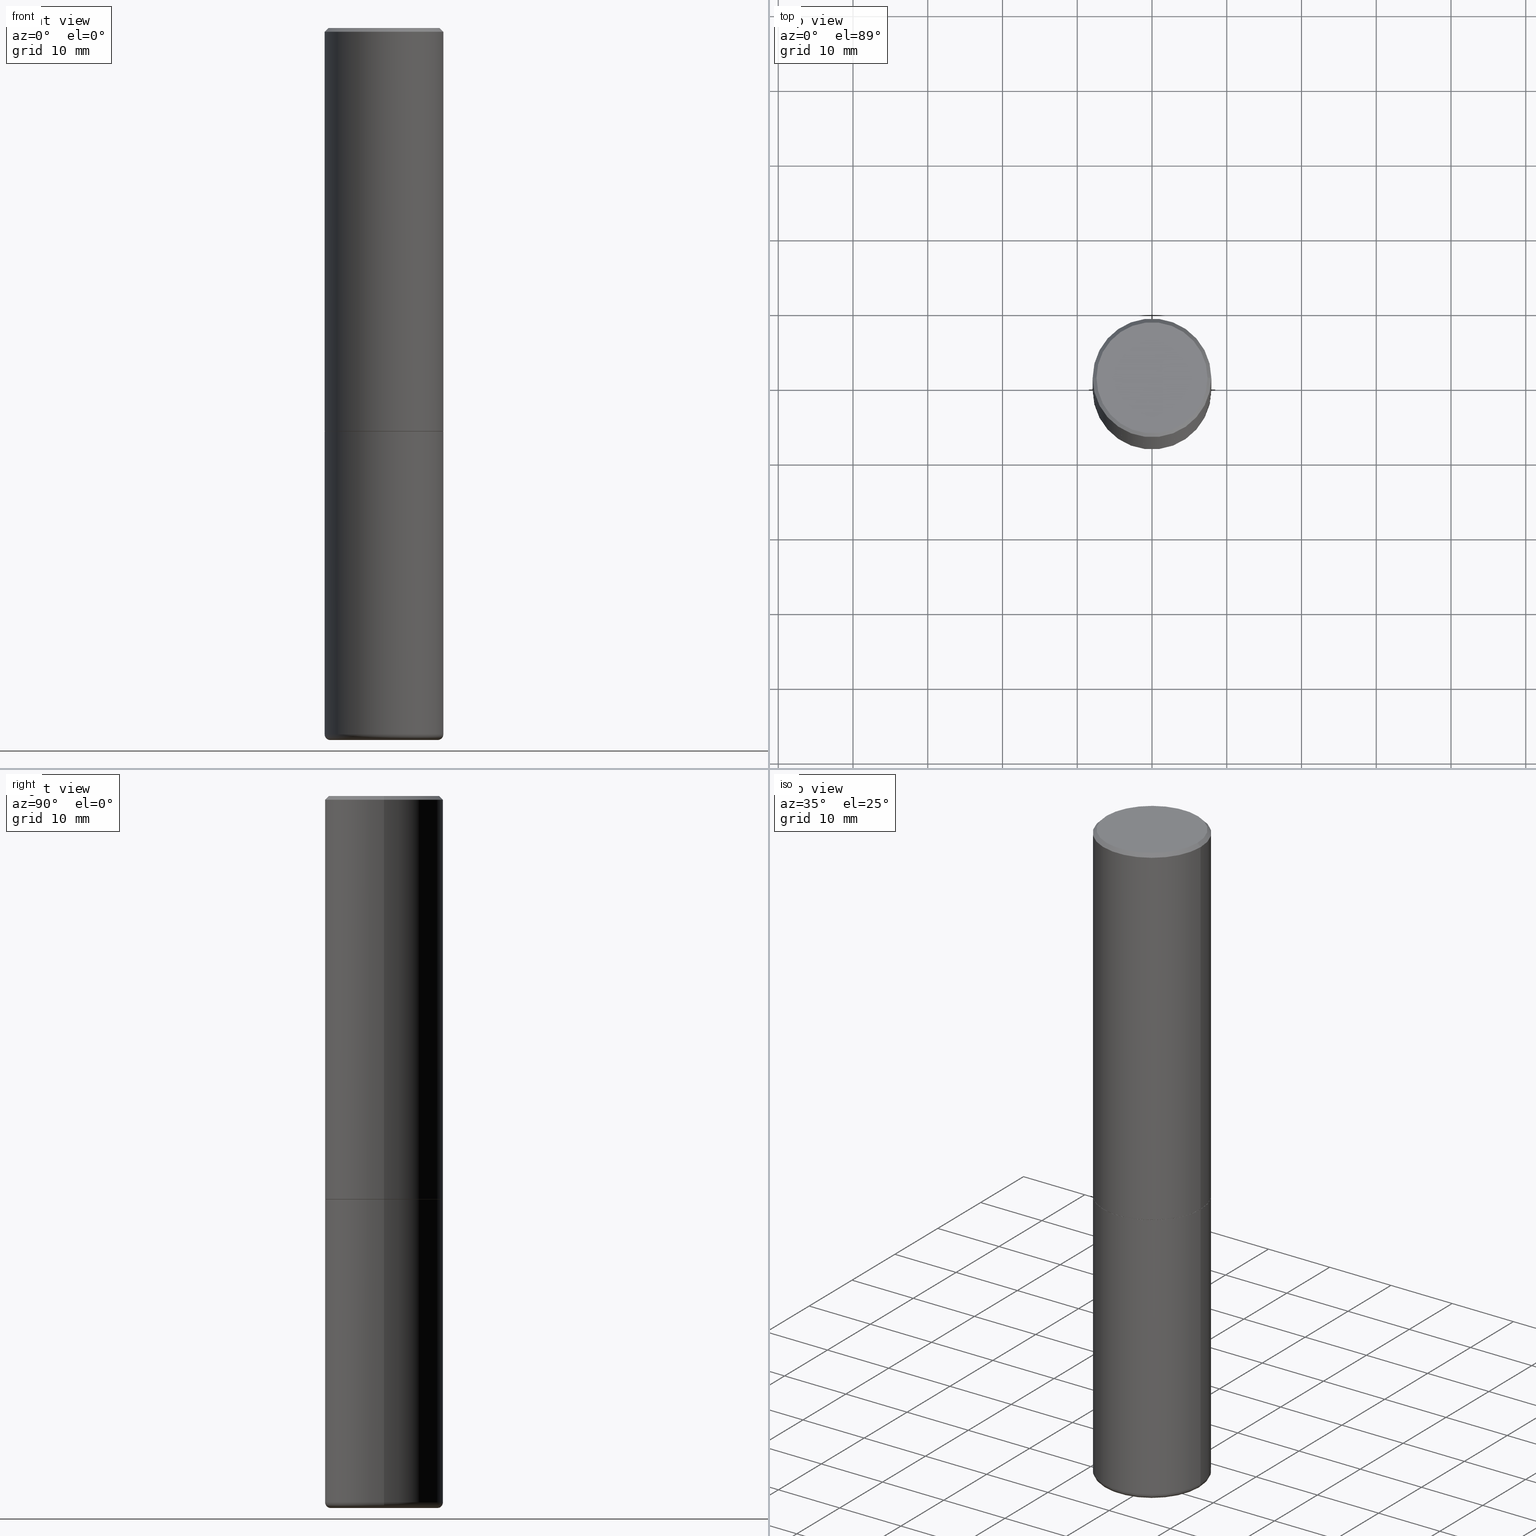
[diagram: canonical four-view strip — front | top / right | iso, engineering-drawing reading convention]
A machine part, canonical four-view strip (front | top / right | iso — engineering-drawing reading convention). The complete STEP part file that produces these views, byte-faithful:
ISO-10303-21;
HEADER;
FILE_DESCRIPTION (( 'STEP AP203' ),
    '1' );
FILE_NAME ('34302.STEP',
    '2022-11-02T20:14:49',
    ( '' ),
    ( '' ),
    'SwSTEP 2.0',
    'SolidWorks 2022',
    '' );
FILE_SCHEMA (( 'CONFIG_CONTROL_DESIGN' ));
ENDSEC;

DATA;
#1 = EDGE_CURVE ( 'NONE', #412, #258, #116, .T. ) ;
#2 = AXIS2_PLACEMENT_3D ( 'NONE', #359, #19, #168 ) ;
#3 = EDGE_LOOP ( 'NONE', ( #232, #436, #234, #221 ) ) ;
#4 = VERTEX_POINT ( 'NONE', #352 ) ;
#5 = LINE ( 'NONE', #155, #463 ) ;
#6 = ADVANCED_FACE ( 'NONE', ( #403 ), #225, .F. ) ;
#7 = AXIS2_PLACEMENT_3D ( 'NONE', #14, #162, #166 ) ;
#8 = CONICAL_SURFACE ( 'NONE', #306, 0.2822382039350491145, 1.562069680534954541 ) ;
#9 = DIRECTION ( 'NONE',  ( -2.445468806185136597E-29, 3.491481338843145583E-15, 1.000000000000000000 ) ) ;
#10 = CARTESIAN_POINT ( 'NONE',  ( 9.097146752487473464E-29, -1.298831456884382869E-14, -3.720001142308075437 ) ) ;
#11 = CC_DESIGN_PERSON_AND_ORGANIZATION_ASSIGNMENT ( #45, #74, ( #105 ) ) ;
#12 = EDGE_CURVE ( 'NONE', #262, #72, #315, .T. ) ;
#13 = AXIS2_PLACEMENT_3D ( 'NONE', #10, #135, #432 ) ;
#14 = CARTESIAN_POINT ( 'NONE',  ( 4.890937612370309067E-31, -6.982962677686343378E-17, -0.02000000000000014960 ) ) ;
#15 = CARTESIAN_POINT ( 'NONE',  ( 0.000000000000000000, 0.000000000000000000, 0.000000000000000000 ) ) ;
#16 = DIRECTION ( 'NONE',  ( 1.000000000000000000, -6.982962677686267499E-15, 4.876176775795935793E-29 ) ) ;
#17 = LINE ( 'NONE', #440, #37 ) ;
#18 = APPROVAL ( #24, 'UNSPECIFIED' ) ;
#19 = DIRECTION ( 'NONE',  ( 2.445468806185136597E-29, -3.491481338843145583E-15, -1.000000000000000000 ) ) ;
#20 = CARTESIAN_POINT ( 'NONE',  ( 4.890937612370309067E-31, -6.982962677686343378E-17, -0.02000000000000014960 ) ) ;
#21 = APPLICATION_PROTOCOL_DEFINITION ( 'international standard', 'config_control_design', 1994, #175 ) ;
#22 = ORIENTED_EDGE ( 'NONE', *, *, #112, .T. ) ;
#23 = AXIS2_PLACEMENT_3D ( 'NONE', #56, #201, #163 ) ;
#24 = APPROVAL_STATUS ( 'not_yet_approved' ) ;
#25 = CARTESIAN_POINT ( 'NONE',  ( 0.2489069539350490801, -1.479966508670854674E-14, -3.749709122587949750 ) ) ;
#26 = DIRECTION ( 'NONE',  ( -2.445468806185136597E-29, 3.491481338843145583E-15, 1.000000000000000000 ) ) ;
#27 = CARTESIAN_POINT ( 'NONE',  ( 4.890937612370309067E-31, -6.982962677686343378E-17, -0.02000000000000014960 ) ) ;
#28 = ORIENTED_EDGE ( 'NONE', *, *, #92, .F. ) ;
#29 = EDGE_LOOP ( 'NONE', ( #106, #41 ) ) ;
#30 = EDGE_CURVE ( 'NONE', #190, #212, #323, .T. ) ;
#31 = COORDINATED_UNIVERSAL_TIME_OFFSET ( 5, 0, .BEHIND. ) ;
#32 = DIRECTION ( 'NONE',  ( -0.7071067811864992780, 7.493145998870180611E-15, 0.7071067811865957564 ) ) ;
#33 = FACE_OUTER_BOUND ( 'NONE', #179, .T. ) ;
#34 = ORIENTED_EDGE ( 'NONE', *, *, #390, .F. ) ;
#35 = DATE_AND_TIME ( #307, #114 ) ;
#36 = FACE_OUTER_BOUND ( 'NONE', #78, .T. ) ;
#37 = VECTOR ( 'NONE', #167, 39.37007874015748143 ) ;
#38 = CARTESIAN_POINT ( 'NONE',  ( 0.3124999999999992784, -1.517049040562078230E-14, -3.720001142308075437 ) ) ;
#39 = DIRECTION ( 'NONE',  ( 0.000000000000000000, 0.000000000000000000, 1.000000000000000000 ) ) ;
#40 = EDGE_CURVE ( 'NONE', #262, #258, #271, .T. ) ;
#41 = ORIENTED_EDGE ( 'NONE', *, *, #462, .T. ) ;
#42 = AXIS2_PLACEMENT_3D ( 'NONE', #52, #431, #240 ) ;
#43 = ORIENTED_EDGE ( 'NONE', *, *, #418, .F. ) ;
#44 = CARTESIAN_POINT ( 'NONE',  ( 0.2924999999999991496, -2.110215457714314803E-15, 4.268512490114932791E-18 ) ) ;
#45 = PERSON_AND_ORGANIZATION ( #480, #335 ) ;
#46 = DIRECTION ( 'NONE',  ( 1.000000000000000000, -6.982962677686265133E-15, 0.000000000000000000 ) ) ;
#47 = ORIENTED_EDGE ( 'NONE', *, *, #383, .T. ) ;
#48 = AXIS2_PLACEMENT_3D ( 'NONE', #198, #9, #385 ) ;
#49 = DIRECTION ( 'NONE',  ( -1.000000000000000000, 6.982962677686264344E-15, 0.000000000000000000 ) ) ;
#50 = EDGE_LOOP ( 'NONE', ( #129, #86, #205, #388 ) ) ;
#51 = CIRCLE ( 'NONE', #285, 0.02999999999999944031 ) ;
#52 = CARTESIAN_POINT ( 'NONE',  ( 9.097146752487473464E-29, -1.298831456884382869E-14, -3.720001142308075437 ) ) ;
#53 = CARTESIAN_POINT ( 'NONE',  ( -0.2822382039350491145, -1.112219617636614208E-14, -3.749999999999999556 ) ) ;
#54 = CARTESIAN_POINT ( 'NONE',  ( 0.3124999999999993339, -2.213735251080462573E-15, -0.02000000000000014960 ) ) ;
#55 = AXIS2_PLACEMENT_3D ( 'NONE', #71, #39, #447 ) ;
#56 = CARTESIAN_POINT ( 'NONE',  ( 5.194175744337230786E-29, -7.415906363702842194E-15, -2.124000000000000110 ) ) ;
#57 = CONICAL_SURFACE ( 'NONE', #174, 0.3114999999999996660, 0.7853981633973801113 ) ;
#58 = ADVANCED_FACE ( 'NONE', ( #386 ), #84, .T. ) ;
#59 = CARTESIAN_POINT ( 'NONE',  ( -0.3114999999999996660, -5.200758768800752304E-15, -2.125000000000000000 ) ) ;
#60 = DIRECTION ( 'NONE',  ( 1.000000000000000000, -6.982962677686267499E-15, 4.876176775795935793E-29 ) ) ;
#61 = EDGE_LOOP ( 'NONE', ( #229, #122, #149, #131 ) ) ;
#62 = PERSON_AND_ORGANIZATION_ROLE ( 'design_owner' ) ;
#63 = FACE_OUTER_BOUND ( 'NONE', #194, .T. ) ;
#64 = DIRECTION ( 'NONE',  ( 1.000000000000000000, -6.982962677686264344E-15, 0.000000000000000000 ) ) ;
#65 = DIRECTION ( 'NONE',  ( 2.438088387897960049E-29, -3.491481338843145188E-15, -1.000000000000000000 ) ) ;
#66 = CC_DESIGN_SECURITY_CLASSIFICATION ( #151, ( #235 ) ) ;
#67 = FACE_OUTER_BOUND ( 'NONE', #481, .T. ) ;
#68 = CIRCLE ( 'NONE', #382, 0.2924999999999991496 ) ;
#69 = CYLINDRICAL_SURFACE ( 'NONE', #161, 0.3124999999999994449 ) ;
#70 = CARTESIAN_POINT ( 'NONE',  ( 9.097146752487473464E-29, -1.298831456884382869E-14, -3.720001142308075437 ) ) ;
#71 = CARTESIAN_POINT ( 'NONE',  ( 0.000000000000000000, 0.000000000000000000, 0.000000000000000000 ) ) ;
#72 = VERTEX_POINT ( 'NONE', #38 ) ;
#73 = ORIENTED_EDGE ( 'NONE', *, *, #30, .F. ) ;
#74 = PERSON_AND_ORGANIZATION_ROLE ( 'creator' ) ;
#75 = EDGE_CURVE ( 'NONE', #381, #227, #158, .T. ) ;
#76 = CARTESIAN_POINT ( 'NONE',  ( -0.3124999999999996114, -7.983410157692447018E-15, -2.125000000000000000 ) ) ;
#77 = DIRECTION ( 'NONE',  ( 2.438088387897960049E-29, -3.491481338843145188E-15, -1.000000000000000000 ) ) ;
#78 = EDGE_LOOP ( 'NONE', ( #47, #460, #73, #312 ) ) ;
#79 = ORIENTED_EDGE ( 'NONE', *, *, #89, .T. ) ;
#80 = SECURITY_CLASSIFICATION_LEVEL ( 'unclassified' ) ;
#81 = CIRCLE ( 'NONE', #478, 0.3114999999999996660 ) ;
#82 = APPROVAL_DATE_TIME ( #191, #464 ) ;
#83 = COORDINATED_UNIVERSAL_TIME_OFFSET ( 5, 0, .BEHIND. ) ;
#84 = CONICAL_SURFACE ( 'NONE', #48, 0.3114999999999996660, 0.7853981633973801113 ) ;
#85 = AXIS2_PLACEMENT_3D ( 'NONE', #15, #318, #16 ) ;
#86 = ORIENTED_EDGE ( 'NONE', *, *, #292, .T. ) ;
#87 = CARTESIAN_POINT ( 'NONE',  ( -0.3124999999999994449, 2.220446049250309137E-15, -1.537167215704655429E-29 ) ) ;
#88 = DATE_AND_TIME ( #233, #253 ) ;
#89 = EDGE_CURVE ( 'NONE', #367, #190, #187, .T. ) ;
#90 = DIRECTION ( 'NONE',  ( 1.000000000000000000, -6.982962677686269077E-15, 0.000000000000000000 ) ) ;
#91 = AXIS2_PLACEMENT_3D ( 'NONE', #319, #283, #289 ) ;
#92 = EDGE_CURVE ( 'NONE', #465, #124, #353, .T. ) ;
#93 = CARTESIAN_POINT ( 'NONE',  ( -0.2489069539350490801, -1.135393145806070933E-14, -3.749709122587949750 ) ) ;
#94 = DIRECTION ( 'NONE',  ( 1.000000000000000000, -6.982962677686268288E-15, 0.000000000000000000 ) ) ;
#95 = DIRECTION ( 'NONE',  ( 1.000000000000000000, -6.982962677686264344E-15, 0.000000000000000000 ) ) ;
#96 = EDGE_CURVE ( 'NONE', #4, #110, #430, .T. ) ;
#97 = FACE_OUTER_BOUND ( 'NONE', #476, .T. ) ;
#98 = EDGE_LOOP ( 'NONE', ( #290, #260, #196, #449 ) ) ;
#99 = VECTOR ( 'NONE', #316, 39.37007874015748854 ) ;
#100 = TOROIDAL_SURFACE ( 'NONE', #409, 0.2825000000000001399, 0.02999999999999945072 ) ;
#101 = LINE ( 'NONE', #302, #145 ) ;
#102 = PERSON_AND_ORGANIZATION ( #480, #335 ) ;
#103 = DIRECTION ( 'NONE',  ( -1.000000000000000000, 6.982962677686266711E-15, 0.000000000000000000 ) ) ;
#104 = CARTESIAN_POINT ( 'NONE',  ( 0.000000000000000000, 0.000000000000000000, 0.000000000000000000 ) ) ;
#105 = PRODUCT_DEFINITION ( 'UNKNOWN', '', #235, #343 ) ;
#106 = ORIENTED_EDGE ( 'NONE', *, *, #195, .T. ) ;
#107 =( GEOMETRIC_REPRESENTATION_CONTEXT ( 3 ) GLOBAL_UNCERTAINTY_ASSIGNED_CONTEXT ( ( #416 ) ) GLOBAL_UNIT_ASSIGNED_CONTEXT ( ( #401, #214, #119 ) ) REPRESENTATION_CONTEXT ( 'NONE', 'WORKASPACE' ) );
#108 = AXIS2_PLACEMENT_3D ( 'NONE', #27, #218, #181 ) ;
#109 = DIRECTION ( 'NONE',  ( 7.105427357601001859E-15, 1.000000000000000000, -3.491481338843145583E-15 ) ) ;
#110 = VERTEX_POINT ( 'NONE', #93 ) ;
#111 = DIRECTION ( 'NONE',  ( -2.445468806185136597E-29, 3.491481338843145583E-15, 1.000000000000000000 ) ) ;
#112 = EDGE_CURVE ( 'NONE', #212, #190, #373, .T. ) ;
#113 = DIRECTION ( 'NONE',  ( -2.445468806185136597E-29, 3.491481338843145583E-15, 1.000000000000000000 ) ) ;
#114 = LOCAL_TIME ( 16, 14, 49.00000000000000000, #83 ) ;
#115 = CALENDAR_DATE ( 2022, 2, 11 ) ;
#116 = CIRCLE ( 'NONE', #468, 0.3124999999999996114 ) ;
#117 = VERTEX_POINT ( 'NONE', #351 ) ;
#118 = COORDINATED_UNIVERSAL_TIME_OFFSET ( 5, 0, .BEHIND. ) ;
#119 =( NAMED_UNIT ( * ) SI_UNIT ( $, .STERADIAN. ) SOLID_ANGLE_UNIT ( ) );
#120 = VECTOR ( 'NONE', #375, 39.37007874015748143 ) ;
#121 = CIRCLE ( 'NONE', #23, 0.3124999999999996114 ) ;
#122 = ORIENTED_EDGE ( 'NONE', *, *, #12, .T. ) ;
#123 = PRODUCT_RELATED_PRODUCT_CATEGORY ( 'detail', '', ( #153 ) ) ;
#124 = VERTEX_POINT ( 'NONE', #356 ) ;
#125 = DIRECTION ( 'NONE',  ( 1.000000000000000000, -6.982962677686265922E-15, 4.883557194083112340E-29 ) ) ;
#126 = DIRECTION ( 'NONE',  ( 0.7071067811865476838, -7.319954787623257623E-15, -0.7071067811865473507 ) ) ;
#127 = ORIENTED_EDGE ( 'NONE', *, *, #197, .T. ) ;
#128 = EDGE_CURVE ( 'NONE', #406, #117, #81, .T. ) ;
#129 = ORIENTED_EDGE ( 'NONE', *, *, #264, .F. ) ;
#130 = CC_DESIGN_APPROVAL ( #464, ( #235 ) ) ;
#131 = ORIENTED_EDGE ( 'NONE', *, *, #197, .F. ) ;
#132 = AXIS2_PLACEMENT_3D ( 'NONE', #252, #404, #95 ) ;
#133 = DIRECTION ( 'NONE',  ( 2.445468806185136597E-29, -3.491481338843145583E-15, -1.000000000000000000 ) ) ;
#134 = CARTESIAN_POINT ( 'NONE',  ( 9.170508023194261117E-29, -1.309305502066179584E-14, -3.749999999999999556 ) ) ;
#135 = DIRECTION ( 'NONE',  ( -2.445468806185136597E-29, 3.491481338843145583E-15, 1.000000000000000000 ) ) ;
#136 = CIRCLE ( 'NONE', #269, 0.02999999999999944031 ) ;
#137 = ORIENTED_EDGE ( 'NONE', *, *, #380, .F. ) ;
#138 = CIRCLE ( 'NONE', #354, 0.2822382039350491145 ) ;
#139 = DIRECTION ( 'NONE',  ( 1.000000000000000000, -6.982962677686265922E-15, 4.876176775795935793E-29 ) ) ;
#140 = ORIENTED_EDGE ( 'NONE', *, *, #177, .T. ) ;
#141 = CARTESIAN_POINT ( 'NONE',  ( 2.182175836777007256E-15, 0.3124999999999921729, -2.125000000000001332 ) ) ;
#142 = LINE ( 'NONE', #378, #469 ) ;
#143 = CARTESIAN_POINT ( 'NONE',  ( -0.3124999999999993339, 2.112346210000090316E-15, -0.02000000000000014960 ) ) ;
#144 = CARTESIAN_POINT ( 'NONE',  ( 0.3124999999999994449, -2.182175836776954797E-15, 1.523805242436227273E-29 ) ) ;
#145 = VECTOR ( 'NONE', #32, 39.37007874015748143 ) ;
#146 = FACE_OUTER_BOUND ( 'NONE', #384, .T. ) ;
#147 = SHAPE_DEFINITION_REPRESENTATION ( #376, #207 ) ;
#148 = DIRECTION ( 'NONE',  ( -2.445468806185136597E-29, 3.491481338843145583E-15, 1.000000000000000000 ) ) ;
#149 = ORIENTED_EDGE ( 'NONE', *, *, #154, .T. ) ;
#150 = LOCAL_TIME ( 16, 14, 49.00000000000000000, #31 ) ;
#151 = SECURITY_CLASSIFICATION ( '', '', #80 ) ;
#152 = ORIENTED_EDGE ( 'NONE', *, *, #184, .F. ) ;
#153 = PRODUCT ( '34302', '34302', '', ( #291 ) ) ;
#154 = EDGE_CURVE ( 'NONE', #72, #412, #444, .T. ) ;
#155 = CARTESIAN_POINT ( 'NONE',  ( -0.3124999999999994449, 2.220446049250309137E-15, -1.537167215704655429E-29 ) ) ;
#156 = AXIS2_PLACEMENT_3D ( 'NONE', #357, #405, #217 ) ;
#157 = ADVANCED_FACE ( 'NONE', ( #33 ), #391, .F. ) ;
#158 = LINE ( 'NONE', #274, #296 ) ;
#159 = APPROVAL_PERSON_ORGANIZATION ( #188, #257, #454 ) ;
#160 = ADVANCED_FACE ( 'NONE', ( #287 ), #482, .F. ) ;
#161 = AXIS2_PLACEMENT_3D ( 'NONE', #215, #331, #410 ) ;
#162 = DIRECTION ( 'NONE',  ( -2.445468806185136597E-29, 3.491481338843145583E-15, 1.000000000000000000 ) ) ;
#163 = DIRECTION ( 'NONE',  ( 1.000000000000000000, -6.982962677686269077E-15, 0.000000000000000000 ) ) ;
#164 = ORIENTED_EDGE ( 'NONE', *, *, #112, .F. ) ;
#165 = CARTESIAN_POINT ( 'NONE',  ( 9.097146752487473464E-29, -1.298831456884382869E-14, -3.720001142308075437 ) ) ;
#166 = DIRECTION ( 'NONE',  ( 1.000000000000000000, -6.982962677686266711E-15, 0.000000000000000000 ) ) ;
#167 = DIRECTION ( 'NONE',  ( 0.7071067811864992780, -2.468850131081751401E-15, 0.7071067811865957564 ) ) ;
#168 = DIRECTION ( 'NONE',  ( -1.000000000000000000, 6.982962677686265133E-15, 0.000000000000000000 ) ) ;
#169 = EDGE_CURVE ( 'NONE', #381, #110, #256, .T. ) ;
#170 = CARTESIAN_POINT ( 'NONE',  ( 0.000000000000000000, 0.000000000000000000, 0.000000000000000000 ) ) ;
#171 = CARTESIAN_POINT ( 'NONE',  ( 5.196621213143415268E-29, -7.419397845041685201E-15, -2.125000000000000000 ) ) ;
#172 = APPROVAL_ROLE ( '' ) ;
#173 = MANIFOLD_SOLID_BREP ( 'Body-Move/Copy2[2]', #230 ) ;
#174 = AXIS2_PLACEMENT_3D ( 'NONE', #414, #455, #484 ) ;
#175 = APPLICATION_CONTEXT ( 'configuration controlled 3d designs of mechanical parts and assemblies' ) ;
#176 = AXIS2_PLACEMENT_3D ( 'NONE', #141, #65, #442 ) ;
#177 = EDGE_CURVE ( 'NONE', #117, #124, #17, .T. ) ;
#178 = CARTESIAN_POINT ( 'NONE',  ( 0.3124999999999994449, -2.182175836776954797E-15, 1.523805242436227273E-29 ) ) ;
#179 = EDGE_LOOP ( 'NONE', ( #342, #441, #389 ) ) ;
#180 = DIRECTION ( 'NONE',  ( 0.9993908270190957621, -6.978169709227544643E-15, -0.03489949670250174635 ) ) ;
#181 = DIRECTION ( 'NONE',  ( -1.000000000000000000, 6.982962677686266711E-15, 0.000000000000000000 ) ) ;
#182 = DIMENSIONAL_EXPONENTS ( 1.000000000000000000, 0.000000000000000000, 0.000000000000000000, 0.000000000000000000, 0.000000000000000000, 0.000000000000000000, 0.000000000000000000 ) ;
#183 = EDGE_LOOP ( 'NONE', ( #329, #192, #308, #369 ) ) ;
#184 = EDGE_CURVE ( 'NONE', #72, #262, #267, .T. ) ;
#185 = ORIENTED_EDGE ( 'NONE', *, *, #488, .F. ) ;
#186 = CONICAL_SURFACE ( 'NONE', #243, 0.2822382039350491145, 1.562069680534954541 ) ;
#187 = LINE ( 'NONE', #466, #321 ) ;
#188 = PERSON_AND_ORGANIZATION ( #480, #335 ) ;
#189 = DIRECTION ( 'NONE',  ( -0.7071067811865476838, 2.468850131082258638E-15, -0.7071067811865473507 ) ) ;
#190 = VERTEX_POINT ( 'NONE', #54 ) ;
#191 = DATE_AND_TIME ( #115, #216 ) ;
#192 = ORIENTED_EDGE ( 'NONE', *, *, #206, .T. ) ;
#193 = CIRCLE ( 'NONE', #156, 0.2489069539350490801 ) ;
#194 = EDGE_LOOP ( 'NONE', ( #419, #248, #152, #185 ) ) ;
#195 = EDGE_CURVE ( 'NONE', #298, #367, #68, .T. ) ;
#196 = ORIENTED_EDGE ( 'NONE', *, *, #1, .F. ) ;
#197 = EDGE_CURVE ( 'NONE', #258, #412, #362, .T. ) ;
#198 = CARTESIAN_POINT ( 'NONE',  ( 5.196621213143415268E-29, -7.419397845041685201E-15, -2.125000000000000000 ) ) ;
#199 = AXIS2_PLACEMENT_3D ( 'NONE', #70, #366, #332 ) ;
#200 = ORIENTED_EDGE ( 'NONE', *, *, #96, .T. ) ;
#201 = DIRECTION ( 'NONE',  ( -2.445468806185136597E-29, 3.491481338843145583E-15, 1.000000000000000000 ) ) ;
#202 = CARTESIAN_POINT ( 'NONE',  ( 5.196621213143415268E-29, -7.419397845041685201E-15, -2.125000000000000000 ) ) ;
#203 = FACE_OUTER_BOUND ( 'NONE', #98, .T. ) ;
#204 = FACE_OUTER_BOUND ( 'NONE', #29, .T. ) ;
#205 = ORIENTED_EDGE ( 'NONE', *, *, #488, .T. ) ;
#206 = EDGE_CURVE ( 'NONE', #406, #465, #101, .T. ) ;
#207 = ADVANCED_BREP_SHAPE_REPRESENTATION ( '34302', ( #338, #173, #55 ), #107 ) ;
#208 = AXIS2_PLACEMENT_3D ( 'NONE', #348, #133, #427 ) ;
#209 = AXIS2_PLACEMENT_3D ( 'NONE', #20, #288, #103 ) ;
#210 = FACE_OUTER_BOUND ( 'NONE', #277, .T. ) ;
#211 = FACE_OUTER_BOUND ( 'NONE', #286, .T. ) ;
#212 = VERTEX_POINT ( 'NONE', #143 ) ;
#213 = DIRECTION ( 'NONE',  ( -2.445468806185136597E-29, 3.491481338843145583E-15, 1.000000000000000000 ) ) ;
#214 =( NAMED_UNIT ( * ) PLANE_ANGLE_UNIT ( ) SI_UNIT ( $, .RADIAN. ) );
#215 = CARTESIAN_POINT ( 'NONE',  ( 0.000000000000000000, 0.000000000000000000, 0.000000000000000000 ) ) ;
#216 = LOCAL_TIME ( 16, 14, 49.00000000000000000, #339 ) ;
#217 = DIRECTION ( 'NONE',  ( 1.000000000000000000, -6.982962677686265133E-15, 0.000000000000000000 ) ) ;
#218 = DIRECTION ( 'NONE',  ( 2.445468806185136597E-29, -3.491481338843145583E-15, -1.000000000000000000 ) ) ;
#219 = ORIENTED_EDGE ( 'NONE', *, *, #128, .T. ) ;
#220 = CALENDAR_DATE ( 2022, 2, 11 ) ;
#221 = ORIENTED_EDGE ( 'NONE', *, *, #479, .F. ) ;
#222 = PERSON_AND_ORGANIZATION ( #480, #335 ) ;
#223 = CARTESIAN_POINT ( 'NONE',  ( 4.890937612370309067E-31, -6.982962677686343378E-17, -0.02000000000000014960 ) ) ;
#224 = ORIENTED_EDGE ( 'NONE', *, *, #128, .F. ) ;
#225 = CONICAL_SURFACE ( 'NONE', #208, 0.2489069539350490801, 1.535889741755009252 ) ;
#226 = PERSON_AND_ORGANIZATION ( #480, #335 ) ;
#227 = VERTEX_POINT ( 'NONE', #336 ) ;
#228 = ADVANCED_FACE ( 'NONE', ( #328 ), #429, .T. ) ;
#229 = ORIENTED_EDGE ( 'NONE', *, *, #40, .F. ) ;
#230 = CLOSED_SHELL ( 'NONE', ( #58, #471, #448, #228, #282, #238, #300, #407 ) ) ;
#231 = CIRCLE ( 'NONE', #346, 0.2924999999999991496 ) ;
#232 = ORIENTED_EDGE ( 'NONE', *, *, #75, .F. ) ;
#233 = CALENDAR_DATE ( 2022, 2, 11 ) ;
#234 = ORIENTED_EDGE ( 'NONE', *, *, #390, .T. ) ;
#235 = PRODUCT_DEFINITION_FORMATION_WITH_SPECIFIED_SOURCE ( 'ANY', '', #153, .NOT_KNOWN. ) ;
#236 = ORIENTED_EDGE ( 'NONE', *, *, #92, .T. ) ;
#237 = DIRECTION ( 'NONE',  ( 2.445468806185136597E-29, -3.491481338843145583E-15, -1.000000000000000000 ) ) ;
#238 = ADVANCED_FACE ( 'NONE', ( #146 ), #57, .T. ) ;
#239 = LENGTH_MEASURE_WITH_UNIT ( LENGTH_MEASURE( 0.02539999999999999897 ), #435 );
#240 = DIRECTION ( 'NONE',  ( 1.000000000000000000, -6.982962677686266711E-15, 0.000000000000000000 ) ) ;
#241 = APPROVAL_ROLE ( '' ) ;
#242 = CARTESIAN_POINT ( 'NONE',  ( -0.2822382039350491145, -1.092775024232752156E-14, -3.749999999999999556 ) ) ;
#243 = AXIS2_PLACEMENT_3D ( 'NONE', #244, #402, #49 ) ;
#244 = CARTESIAN_POINT ( 'NONE',  ( 9.170508023194261117E-29, -1.309305502066179584E-14, -3.749999999999999556 ) ) ;
#245 = DIRECTION ( 'NONE',  ( -2.445468806185136597E-29, 3.491481338843145583E-15, 1.000000000000000000 ) ) ;
#246 = CC_DESIGN_PERSON_AND_ORGANIZATION_ASSIGNMENT ( #371, #293, ( #235 ) ) ;
#247 = CARTESIAN_POINT ( 'NONE',  ( -0.2489069539350490801, -1.135393145806070933E-14, -3.749709122587949750 ) ) ;
#248 = ORIENTED_EDGE ( 'NONE', *, *, #264, .T. ) ;
#249 = CARTESIAN_POINT ( 'NONE',  ( 9.169796691556669911E-29, -1.309203942760573274E-14, -3.749709122587949750 ) ) ;
#250 = CARTESIAN_POINT ( 'NONE',  ( -0.2924999999999991496, 2.077431396611658667E-15, 4.268512490086005323E-18 ) ) ;
#251 = LINE ( 'NONE', #178, #297 ) ;
#252 = CARTESIAN_POINT ( 'NONE',  ( 9.170508023194261117E-29, -1.309305502066179584E-14, -3.749999999999999556 ) ) ;
#253 = LOCAL_TIME ( 16, 14, 49.00000000000000000, #325 ) ;
#254 = CARTESIAN_POINT ( 'NONE',  ( 2.042516583223227017E-15, 0.2924999999999991496, -1.019124035366567042E-15 ) ) ;
#255 = ORIENTED_EDGE ( 'NONE', *, *, #278, .F. ) ;
#256 = CIRCLE ( 'NONE', #270, 0.2489069539350490801 ) ;
#257 = APPROVAL ( #263, 'UNSPECIFIED' ) ;
#258 = VERTEX_POINT ( 'NONE', #76 ) ;
#259 = ADVANCED_FACE ( 'NONE', ( #411 ), #341, .T. ) ;
#260 = ORIENTED_EDGE ( 'NONE', *, *, #40, .T. ) ;
#261 = ORIENTED_EDGE ( 'NONE', *, *, #30, .T. ) ;
#262 = VERTEX_POINT ( 'NONE', #486 ) ;
#263 = APPROVAL_STATUS ( 'not_yet_approved' ) ;
#264 = EDGE_CURVE ( 'NONE', #314, #262, #51, .T. ) ;
#265 = ORIENTED_EDGE ( 'NONE', *, *, #422, .T. ) ;
#266 = CLOSED_SHELL ( 'NONE', ( #397, #355, #421, #157, #6, #160, #434, #259, #349 ) ) ;
#267 = CIRCLE ( 'NONE', #42, 0.3124999999999992784 ) ;
#268 = ORIENTED_EDGE ( 'NONE', *, *, #462, .F. ) ;
#269 = AXIS2_PLACEMENT_3D ( 'NONE', #445, #361, #94 ) ;
#270 = AXIS2_PLACEMENT_3D ( 'NONE', #249, #213, #46 ) ;
#271 = LINE ( 'NONE', #87, #120 ) ;
#272 = CARTESIAN_POINT ( 'NONE',  ( 0.2489069539350490801, -1.479966508670854674E-14, -3.749709122587949750 ) ) ;
#273 = ORIENTED_EDGE ( 'NONE', *, *, #1, .T. ) ;
#274 = CARTESIAN_POINT ( 'NONE',  ( 0.2822382039350491145, -1.502934965365283188E-14, -3.749999999999999556 ) ) ;
#275 = AXIS2_PLACEMENT_3D ( 'NONE', #254, #77, #368 ) ;
#276 = CC_DESIGN_PERSON_AND_ORGANIZATION_ASSIGNMENT ( #295, #62, ( #153 ) ) ;
#277 = EDGE_LOOP ( 'NONE', ( #43, #224 ) ) ;
#278 = EDGE_CURVE ( 'NONE', #298, #212, #142, .T. ) ;
#279 = CYLINDRICAL_SURFACE ( 'NONE', #85, 0.3124999999999994449 ) ;
#280 = DIRECTION ( 'NONE',  ( -2.445468806185136597E-29, 3.491481338843145583E-15, 1.000000000000000000 ) ) ;
#281 = CC_DESIGN_PERSON_AND_ORGANIZATION_ASSIGNMENT ( #222, #299, ( #151 ) ) ;
#282 = ADVANCED_FACE ( 'NONE', ( #67 ), #443, .T. ) ;
#283 = DIRECTION ( 'NONE',  ( -2.445468806185136597E-29, 3.491481338843145583E-15, 1.000000000000000000 ) ) ;
#284 = APPLICATION_CONTEXT ( 'configuration controlled 3d designs of mechanical parts and assemblies' ) ;
#285 = AXIS2_PLACEMENT_3D ( 'NONE', #294, #109, #490 ) ;
#286 = EDGE_LOOP ( 'NONE', ( #268, #79, #261, #255 ) ) ;
#287 = FACE_OUTER_BOUND ( 'NONE', #347, .T. ) ;
#288 = DIRECTION ( 'NONE',  ( 2.445468806185136597E-29, -3.491481338843145583E-15, -1.000000000000000000 ) ) ;
#289 = DIRECTION ( 'NONE',  ( 1.000000000000000000, -6.982962677686269077E-15, 0.000000000000000000 ) ) ;
#290 = ORIENTED_EDGE ( 'NONE', *, *, #184, .T. ) ;
#291 = MECHANICAL_CONTEXT ( 'NONE', #284, 'mechanical' ) ;
#292 = EDGE_CURVE ( 'NONE', #314, #227, #420, .T. ) ;
#293 = PERSON_AND_ORGANIZATION_ROLE ( 'creator' ) ;
#294 = CARTESIAN_POINT ( 'NONE',  ( -0.2825000000000001399, -1.098103134032154585E-14, -3.720001142308075437 ) ) ;
#295 = PERSON_AND_ORGANIZATION ( #480, #335 ) ;
#296 = VECTOR ( 'NONE', #313, 39.37007874015748854 ) ;
#297 = VECTOR ( 'NONE', #327, 39.37007874015748143 ) ;
#298 = VERTEX_POINT ( 'NONE', #250 ) ;
#299 = PERSON_AND_ORGANIZATION_ROLE ( 'classification_officer' ) ;
#300 = ADVANCED_FACE ( 'NONE', ( #210 ), #475, .F. ) ;
#301 = CARTESIAN_POINT ( 'NONE',  ( -0.3124999999999996114, -1.522421945989539863E-15, -2.124000000000000110 ) ) ;
#302 = CARTESIAN_POINT ( 'NONE',  ( -0.3114999999999996660, -5.206057223148974706E-15, -2.125000000000000000 ) ) ;
#303 = DIRECTION ( 'NONE',  ( 1.000000000000000000, -6.982962677686266711E-15, 0.000000000000000000 ) ) ;
#304 = ORIENTED_EDGE ( 'NONE', *, *, #169, .F. ) ;
#305 = PERSON_AND_ORGANIZATION ( #480, #335 ) ;
#306 = AXIS2_PLACEMENT_3D ( 'NONE', #134, #237, #396 ) ;
#307 = CALENDAR_DATE ( 2022, 2, 11 ) ;
#308 = ORIENTED_EDGE ( 'NONE', *, *, #383, .F. ) ;
#309 = ORIENTED_EDGE ( 'NONE', *, *, #206, .F. ) ;
#310 = DIRECTION ( 'NONE',  ( -2.445468806185136877E-29, 3.491481338843145188E-15, 1.000000000000000000 ) ) ;
#311 = AXIS2_PLACEMENT_3D ( 'NONE', #170, #245, #477 ) ;
#312 = ORIENTED_EDGE ( 'NONE', *, *, #461, .F. ) ;
#313 = DIRECTION ( 'NONE',  ( 0.9999619230641716427, -6.890705306874740920E-15, -0.008726535498344366315 ) ) ;
#314 = VERTEX_POINT ( 'NONE', #242 ) ;
#315 = CIRCLE ( 'NONE', #13, 0.3124999999999992784 ) ;
#316 = DIRECTION ( 'NONE',  ( -0.9993908270190957621, 6.856857904024554104E-15, -0.03489949670250174635 ) ) ;
#317 = DIRECTION ( 'NONE',  ( 1.000000000000000000, -6.982962677686263555E-15, 0.000000000000000000 ) ) ;
#318 = DIRECTION ( 'NONE',  ( -2.445468806185136597E-29, 3.491481338843145583E-15, 1.000000000000000000 ) ) ;
#319 = CARTESIAN_POINT ( 'NONE',  ( 5.196621213143415268E-29, -7.419397845041685201E-15, -2.125000000000000000 ) ) ;
#320 = DIRECTION ( 'NONE',  ( -2.445468806185136597E-29, 3.491481338843145583E-15, 1.000000000000000000 ) ) ;
#321 = VECTOR ( 'NONE', #126, 39.37007874015748143 ) ;
#322 = DIRECTION ( 'NONE',  ( -2.445468806185136597E-29, 3.491481338843145583E-15, 1.000000000000000000 ) ) ;
#323 = CIRCLE ( 'NONE', #489, 0.3124999999999993339 ) ;
#324 = DIRECTION ( 'NONE',  ( 1.000000000000000000, -6.982962677686266711E-15, 4.876067333457703490E-29 ) ) ;
#325 = COORDINATED_UNIVERSAL_TIME_OFFSET ( 5, 0, .BEHIND. ) ;
#326 = AXIS2_PLACEMENT_3D ( 'NONE', #408, #364, #139 ) ;
#327 = DIRECTION ( 'NONE',  ( -2.445468806185136877E-29, 3.491481338843145188E-15, 1.000000000000000000 ) ) ;
#328 = FACE_OUTER_BOUND ( 'NONE', #333, .T. ) ;
#329 = ORIENTED_EDGE ( 'NONE', *, *, #418, .T. ) ;
#330 = FACE_OUTER_BOUND ( 'NONE', #3, .T. ) ;
#331 = DIRECTION ( 'NONE',  ( -2.445468806185136597E-29, 3.491481338843145583E-15, 1.000000000000000000 ) ) ;
#332 = DIRECTION ( 'NONE',  ( 1.000000000000000000, -6.982962677686265922E-15, 4.883557194083112340E-29 ) ) ;
#333 = EDGE_LOOP ( 'NONE', ( #358, #474, #413, #22 ) ) ;
#334 = EDGE_CURVE ( 'NONE', #4, #381, #398, .T. ) ;
#335 = ORGANIZATION ( 'UNSPECIFIED', 'UNSPECIFIED', '' ) ;
#336 = CARTESIAN_POINT ( 'NONE',  ( 0.2822382039350491145, -1.506391386495744802E-14, -3.749999999999999556 ) ) ;
#337 = DATE_TIME_ROLE ( 'classification_date' ) ;
#338 = MANIFOLD_SOLID_BREP ( 'Body-Move/Copy2[1]', #266 ) ;
#339 = COORDINATED_UNIVERSAL_TIME_OFFSET ( 5, 0, .BEHIND. ) ;
#340 = CALENDAR_DATE ( 2022, 2, 11 ) ;
#341 = TOROIDAL_SURFACE ( 'NONE', #199, 0.2825000000000001399, 0.02999999999999945072 ) ;
#342 = ORIENTED_EDGE ( 'NONE', *, *, #96, .F. ) ;
#343 = DESIGN_CONTEXT ( 'detailed design', #175, 'design' ) ;
#344 = DATE_TIME_ROLE ( 'creation_date' ) ;
#345 = CC_DESIGN_APPROVAL ( #18, ( #105 ) ) ;
#346 = AXIS2_PLACEMENT_3D ( 'NONE', #483, #111, #452 ) ;
#347 = EDGE_LOOP ( 'NONE', ( #273, #127 ) ) ;
#348 = CARTESIAN_POINT ( 'NONE',  ( 9.169796691556669911E-29, -1.309203942760573274E-14, -3.749709122587949750 ) ) ;
#349 = ADVANCED_FACE ( 'NONE', ( #330 ), #8, .F. ) ;
#350 = CARTESIAN_POINT ( 'NONE',  ( 5.196621213143415268E-29, -7.419397845041685201E-15, -2.125000000000000000 ) ) ;
#351 = CARTESIAN_POINT ( 'NONE',  ( 0.3114999999999996660, -9.594590719140952801E-15, -2.125000000000000000 ) ) ;
#352 = CARTESIAN_POINT ( 'NONE',  ( 9.150905169233482758E-29, -1.305830522751425417E-14, -3.741017100224690584 ) ) ;
#353 = CIRCLE ( 'NONE', #399, 0.3124999999999996114 ) ;
#354 = AXIS2_PLACEMENT_3D ( 'NONE', #433, #473, #64 ) ;
#355 = ADVANCED_FACE ( 'NONE', ( #63 ), #100, .T. ) ;
#356 = CARTESIAN_POINT ( 'NONE',  ( 0.3124999999999996114, -9.598082200479797386E-15, -2.124000000000000110 ) ) ;
#357 = CARTESIAN_POINT ( 'NONE',  ( 9.169796691556669911E-29, -1.309203942760573274E-14, -3.749709122587949750 ) ) ;
#358 = ORIENTED_EDGE ( 'NONE', *, *, #89, .F. ) ;
#359 = CARTESIAN_POINT ( 'NONE',  ( 9.169796691556669911E-29, -1.309203942760573274E-14, -3.749709122587949750 ) ) ;
#360 = APPROVAL_PERSON_ORGANIZATION ( #102, #18, #172 ) ;
#361 = DIRECTION ( 'NONE',  ( -6.982962677686266711E-15, -1.000000000000000000, 3.491481338843145583E-15 ) ) ;
#362 = CIRCLE ( 'NONE', #91, 0.3124999999999996114 ) ;
#363 = APPLICATION_PROTOCOL_DEFINITION ( 'international standard', 'config_control_design', 1994, #284 ) ;
#364 = DIRECTION ( 'NONE',  ( -2.438088387897960049E-29, 3.491481338843145188E-15, 1.000000000000000000 ) ) ;
#365 = CYLINDRICAL_SURFACE ( 'NONE', #415, 0.3124999999999994449 ) ;
#366 = DIRECTION ( 'NONE',  ( -2.445468806185136597E-29, 3.491481338843145583E-15, 1.000000000000000000 ) ) ;
#367 = VERTEX_POINT ( 'NONE', #44 ) ;
#368 = DIRECTION ( 'NONE',  ( -1.000000000000000000, 6.982962677686265922E-15, -4.876176775795935793E-29 ) ) ;
#369 = ORIENTED_EDGE ( 'NONE', *, *, #177, .F. ) ;
#370 = DIRECTION ( 'NONE',  ( -2.445468806185136877E-29, 3.491481338843145188E-15, 1.000000000000000000 ) ) ;
#371 = PERSON_AND_ORGANIZATION ( #480, #335 ) ;
#372 = CC_DESIGN_PERSON_AND_ORGANIZATION_ASSIGNMENT ( #226, #456, ( #235 ) ) ;
#373 = CIRCLE ( 'NONE', #7, 0.3124999999999993339 ) ;
#374 = CIRCLE ( 'NONE', #453, 0.3114999999999996660 ) ;
#375 = DIRECTION ( 'NONE',  ( -2.445468806185136877E-29, 3.491481338843145188E-15, 1.000000000000000000 ) ) ;
#376 = PRODUCT_DEFINITION_SHAPE ( 'NONE', 'NONE',  #105 ) ;
#377 = DATE_AND_TIME ( #340, #426 ) ;
#378 = CARTESIAN_POINT ( 'NONE',  ( -0.3124999999999993339, 2.112346210000090316E-15, -0.02000000000000014960 ) ) ;
#379 = EDGE_LOOP ( 'NONE', ( #395, #200, #304 ) ) ;
#380 = EDGE_CURVE ( 'NONE', #465, #212, #5, .T. ) ;
#381 = VERTEX_POINT ( 'NONE', #272 ) ;
#382 = AXIS2_PLACEMENT_3D ( 'NONE', #393, #280, #324 ) ;
#383 = EDGE_CURVE ( 'NONE', #124, #465, #121, .T. ) ;
#384 = EDGE_LOOP ( 'NONE', ( #309, #219, #140, #28 ) ) ;
#385 = DIRECTION ( 'NONE',  ( 1.000000000000000000, -6.982962677686263555E-15, 0.000000000000000000 ) ) ;
#386 = FACE_OUTER_BOUND ( 'NONE', #183, .T. ) ;
#387 = APPROVAL_DATE_TIME ( #88, #18 ) ;
#388 = ORIENTED_EDGE ( 'NONE', *, *, #12, .F. ) ;
#389 = ORIENTED_EDGE ( 'NONE', *, *, #422, .F. ) ;
#390 = EDGE_CURVE ( 'NONE', #110, #314, #394, .T. ) ;
#391 = CONICAL_SURFACE ( 'NONE', #2, 0.2489069539350490801, 1.535889741755009252 ) ;
#392 = VECTOR ( 'NONE', #180, 39.37007874015748854 ) ;
#393 = CARTESIAN_POINT ( 'NONE',  ( -1.043851414335219820E-46, 1.490343170380447200E-32, 4.268512490100411279E-18 ) ) ;
#394 = LINE ( 'NONE', #53, #400 ) ;
#395 = ORIENTED_EDGE ( 'NONE', *, *, #334, .F. ) ;
#396 = DIRECTION ( 'NONE',  ( -1.000000000000000000, 6.982962677686264344E-15, 0.000000000000000000 ) ) ;
#397 = ADVANCED_FACE ( 'NONE', ( #97 ), #186, .F. ) ;
#398 = LINE ( 'NONE', #25, #392 ) ;
#399 = AXIS2_PLACEMENT_3D ( 'NONE', #424, #113, #90 ) ;
#400 = VECTOR ( 'NONE', #437, 39.37007874015748854 ) ;
#401 =( CONVERSION_BASED_UNIT ( 'INCH', #239 ) LENGTH_UNIT ( ) NAMED_UNIT ( #182 ) );
#402 = DIRECTION ( 'NONE',  ( 2.445468806185136597E-29, -3.491481338843145583E-15, -1.000000000000000000 ) ) ;
#403 = FACE_OUTER_BOUND ( 'NONE', #379, .T. ) ;
#404 = DIRECTION ( 'NONE',  ( -2.445468806185136597E-29, 3.491481338843145583E-15, 1.000000000000000000 ) ) ;
#405 = DIRECTION ( 'NONE',  ( -2.445468806185136597E-29, 3.491481338843145583E-15, 1.000000000000000000 ) ) ;
#406 = VERTEX_POINT ( 'NONE', #59 ) ;
#407 = ADVANCED_FACE ( 'NONE', ( #204 ), #423, .F. ) ;
#408 = CARTESIAN_POINT ( 'NONE',  ( 5.196621213143415268E-29, -7.419397845041685201E-15, -2.125000000000000000 ) ) ;
#409 = AXIS2_PLACEMENT_3D ( 'NONE', #165, #320, #125 ) ;
#410 = DIRECTION ( 'NONE',  ( 1.000000000000000000, -6.982962677686267499E-15, 4.876176775795935793E-29 ) ) ;
#411 = FACE_OUTER_BOUND ( 'NONE', #50, .T. ) ;
#412 = VERTEX_POINT ( 'NONE', #491 ) ;
#413 = ORIENTED_EDGE ( 'NONE', *, *, #278, .T. ) ;
#414 = CARTESIAN_POINT ( 'NONE',  ( 5.196621213143415268E-29, -7.419397845041685201E-15, -2.125000000000000000 ) ) ;
#415 = AXIS2_PLACEMENT_3D ( 'NONE', #104, #26, #60 ) ;
#416 = UNCERTAINTY_MEASURE_WITH_UNIT (LENGTH_MEASURE( 1.000000000000000082E-05 ), #401, 'distance_accuracy_value', 'NONE');
#417 = CC_DESIGN_DATE_AND_TIME_ASSIGNMENT ( #428, #344, ( #105 ) ) ;
#418 = EDGE_CURVE ( 'NONE', #117, #406, #374, .T. ) ;
#419 = ORIENTED_EDGE ( 'NONE', *, *, #479, .T. ) ;
#420 = CIRCLE ( 'NONE', #132, 0.2822382039350491145 ) ;
#421 = ADVANCED_FACE ( 'NONE', ( #203 ), #69, .T. ) ;
#422 = EDGE_CURVE ( 'NONE', #110, #381, #193, .T. ) ;
#423 = PLANE ( 'NONE',  #275 ) ;
#424 = CARTESIAN_POINT ( 'NONE',  ( 5.194175744337230786E-29, -7.415906363702842194E-15, -2.124000000000000110 ) ) ;
#425 = DIRECTION ( 'NONE',  ( 1.000000000000000000, -6.982962677686263555E-15, 0.000000000000000000 ) ) ;
#426 = LOCAL_TIME ( 16, 14, 49.00000000000000000, #118 ) ;
#427 = DIRECTION ( 'NONE',  ( -1.000000000000000000, 6.982962677686265133E-15, 0.000000000000000000 ) ) ;
#428 = DATE_AND_TIME ( #220, #150 ) ;
#429 = CONICAL_SURFACE ( 'NONE', #108, 0.3124999999999993339, 0.7853981633974485010 ) ;
#430 = LINE ( 'NONE', #247, #99 ) ;
#431 = DIRECTION ( 'NONE',  ( -2.445468806185136597E-29, 3.491481338843145583E-15, 1.000000000000000000 ) ) ;
#432 = DIRECTION ( 'NONE',  ( 1.000000000000000000, -6.982962677686266711E-15, 0.000000000000000000 ) ) ;
#433 = CARTESIAN_POINT ( 'NONE',  ( 9.170508023194261117E-29, -1.309305502066179584E-14, -3.749999999999999556 ) ) ;
#434 = ADVANCED_FACE ( 'NONE', ( #446 ), #365, .T. ) ;
#435 =( LENGTH_UNIT ( ) NAMED_UNIT ( * ) SI_UNIT ( $, .METRE. ) );
#436 = ORIENTED_EDGE ( 'NONE', *, *, #169, .T. ) ;
#437 = DIRECTION ( 'NONE',  ( -0.9999619230641716427, 6.952228252019274165E-15, -0.008726535498344366315 ) ) ;
#438 = DIRECTION ( 'NONE',  ( -2.445468806185136597E-29, 3.491481338843145583E-15, 1.000000000000000000 ) ) ;
#439 = CONICAL_SURFACE ( 'NONE', #209, 0.3124999999999993339, 0.7853981633974485010 ) ;
#440 = CARTESIAN_POINT ( 'NONE',  ( 0.3114999999999996660, -9.594590719140952801E-15, -2.125000000000000000 ) ) ;
#441 = ORIENTED_EDGE ( 'NONE', *, *, #334, .T. ) ;
#442 = DIRECTION ( 'NONE',  ( -1.000000000000000000, 6.982962677686265922E-15, -4.876176775795935793E-29 ) ) ;
#443 = CYLINDRICAL_SURFACE ( 'NONE', #311, 0.3124999999999994449 ) ;
#444 = LINE ( 'NONE', #144, #459 ) ;
#445 = CARTESIAN_POINT ( 'NONE',  ( 0.2825000000000001399, -1.496100152529019872E-14, -3.720001142308075437 ) ) ;
#446 = FACE_OUTER_BOUND ( 'NONE', #61, .T. ) ;
#447 = DIRECTION ( 'NONE',  ( 1.000000000000000000, 0.000000000000000000, 0.000000000000000000 ) ) ;
#448 = ADVANCED_FACE ( 'NONE', ( #211 ), #439, .T. ) ;
#449 = ORIENTED_EDGE ( 'NONE', *, *, #154, .F. ) ;
#450 = ORIENTED_EDGE ( 'NONE', *, *, #292, .F. ) ;
#451 = CC_DESIGN_APPROVAL ( #257, ( #151 ) ) ;
#452 = DIRECTION ( 'NONE',  ( 1.000000000000000000, -6.982962677686266711E-15, 4.876067333457703490E-29 ) ) ;
#453 = AXIS2_PLACEMENT_3D ( 'NONE', #350, #467, #425 ) ;
#454 = APPROVAL_ROLE ( '' ) ;
#455 = DIRECTION ( 'NONE',  ( -2.445468806185136597E-29, 3.491481338843145583E-15, 1.000000000000000000 ) ) ;
#456 = PERSON_AND_ORGANIZATION_ROLE ( 'design_supplier' ) ;
#457 = CC_DESIGN_DATE_AND_TIME_ASSIGNMENT ( #35, #337, ( #151 ) ) ;
#458 = APPROVAL_PERSON_ORGANIZATION ( #305, #464, #241 ) ;
#459 = VECTOR ( 'NONE', #370, 39.37007874015748143 ) ;
#460 = ORIENTED_EDGE ( 'NONE', *, *, #380, .T. ) ;
#461 = EDGE_CURVE ( 'NONE', #124, #190, #251, .T. ) ;
#462 = EDGE_CURVE ( 'NONE', #367, #298, #231, .T. ) ;
#463 = VECTOR ( 'NONE', #310, 39.37007874015748143 ) ;
#464 = APPROVAL ( #472, 'UNSPECIFIED' ) ;
#465 = VERTEX_POINT ( 'NONE', #301 ) ;
#466 = CARTESIAN_POINT ( 'NONE',  ( 0.3124999999999993339, -2.213735251080462573E-15, -0.02000000000000014960 ) ) ;
#467 = DIRECTION ( 'NONE',  ( -2.445468806185136597E-29, 3.491481338843145583E-15, 1.000000000000000000 ) ) ;
#468 = AXIS2_PLACEMENT_3D ( 'NONE', #202, #438, #470 ) ;
#469 = VECTOR ( 'NONE', #189, 39.37007874015748143 ) ;
#470 = DIRECTION ( 'NONE',  ( 1.000000000000000000, -6.982962677686269077E-15, 0.000000000000000000 ) ) ;
#471 = ADVANCED_FACE ( 'NONE', ( #36 ), #279, .T. ) ;
#472 = APPROVAL_STATUS ( 'not_yet_approved' ) ;
#473 = DIRECTION ( 'NONE',  ( -2.445468806185136597E-29, 3.491481338843145583E-15, 1.000000000000000000 ) ) ;
#474 = ORIENTED_EDGE ( 'NONE', *, *, #195, .F. ) ;
#475 = PLANE ( 'NONE',  #326 ) ;
#476 = EDGE_LOOP ( 'NONE', ( #265, #487, #450, #34 ) ) ;
#477 = DIRECTION ( 'NONE',  ( 1.000000000000000000, -6.982962677686267499E-15, 4.876176775795935793E-29 ) ) ;
#478 = AXIS2_PLACEMENT_3D ( 'NONE', #171, #322, #317 ) ;
#479 = EDGE_CURVE ( 'NONE', #227, #314, #138, .T. ) ;
#480 = PERSON ( 'UNSPECIFIED', 'UNSPECIFIED', 'UNSPECIFIED', ('UNSPECIFIED'), ('UNSPECIFIED'), ('UNSPECIFIED') ) ;
#481 = EDGE_LOOP ( 'NONE', ( #137, #236, #485, #164 ) ) ;
#482 = PLANE ( 'NONE',  #176 ) ;
#483 = CARTESIAN_POINT ( 'NONE',  ( -1.043851414335219820E-46, 1.490343170380447200E-32, 4.268512490100411279E-18 ) ) ;
#484 = DIRECTION ( 'NONE',  ( 1.000000000000000000, -6.982962677686263555E-15, 0.000000000000000000 ) ) ;
#485 = ORIENTED_EDGE ( 'NONE', *, *, #461, .T. ) ;
#486 = CARTESIAN_POINT ( 'NONE',  ( -0.3124999999999992784, -7.983410157692447018E-15, -3.720001142308075437 ) ) ;
#487 = ORIENTED_EDGE ( 'NONE', *, *, #75, .T. ) ;
#488 = EDGE_CURVE ( 'NONE', #227, #72, #136, .T. ) ;
#489 = AXIS2_PLACEMENT_3D ( 'NONE', #223, #148, #303 ) ;
#490 = DIRECTION ( 'NONE',  ( -1.000000000000000000, 7.105427357600993970E-15, 0.000000000000000000 ) ) ;
#491 = CARTESIAN_POINT ( 'NONE',  ( 0.3124999999999996114, -9.601573681818640393E-15, -2.125000000000000000 ) ) ;
#492 = APPROVAL_DATE_TIME ( #377, #257 ) ;
ENDSEC;
END-ISO-10303-21;
